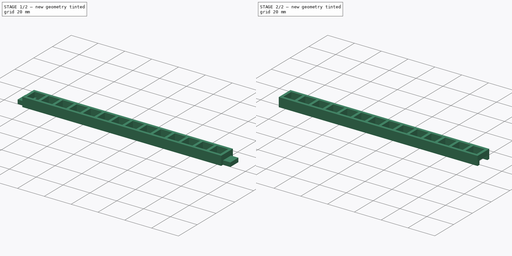
[diagram: build sequence overview — one tinted view per stage of 2, left to right]
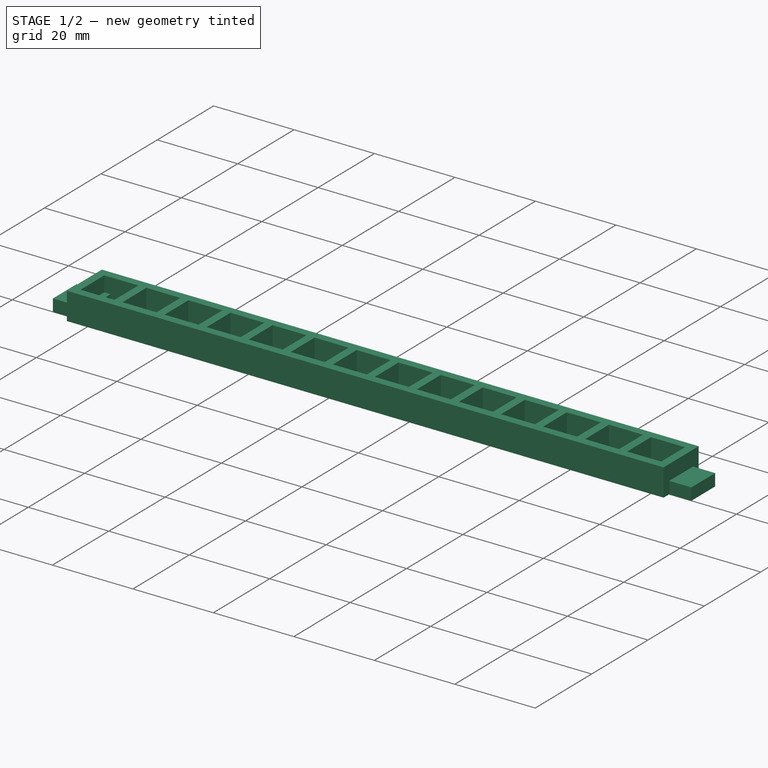
[diagram: stage 1 of 2 — iso view after this stage's code; geometry added in this stage tinted green]
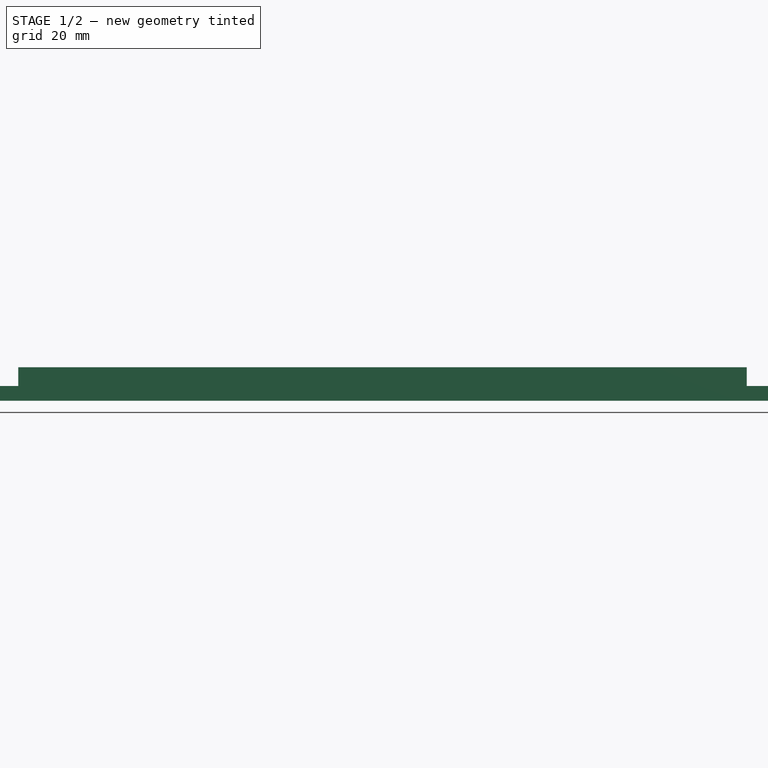
[diagram: stage 1 of 2 — front view after this stage's code; geometry added in this stage tinted green]
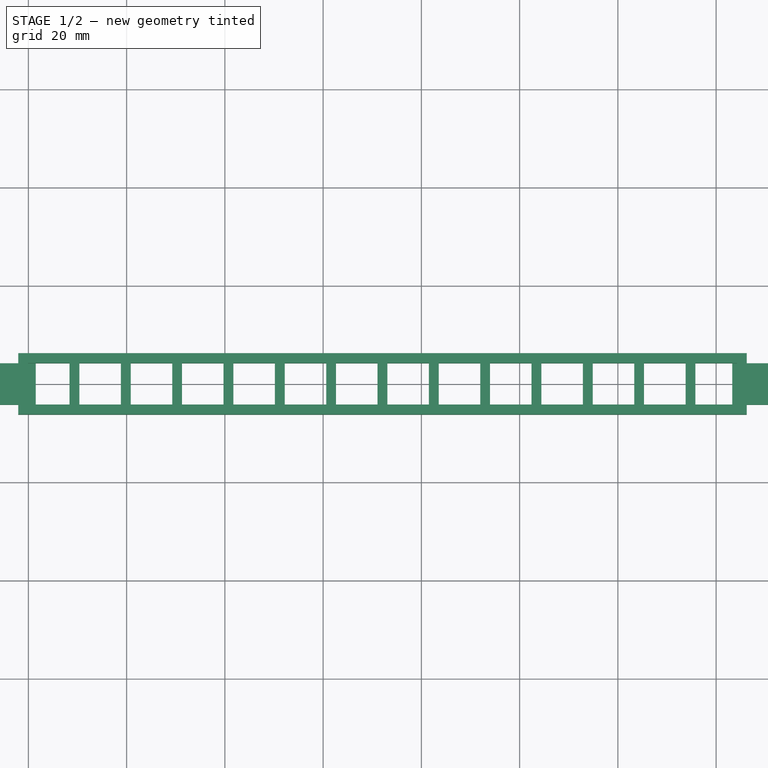
[diagram: stage 1 of 2 — top view after this stage's code; geometry added in this stage tinted green]
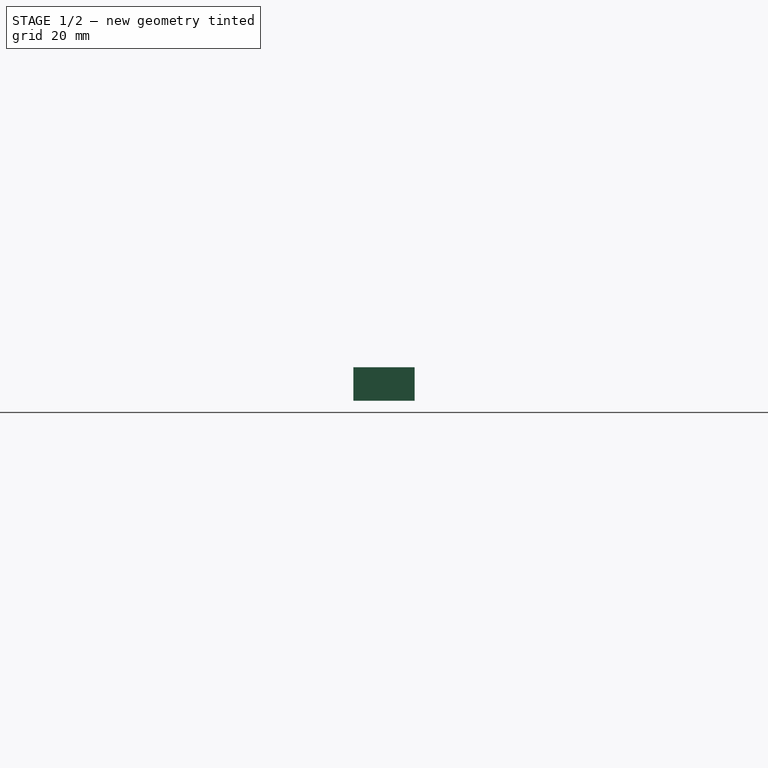
[diagram: stage 1 of 2 — right view after this stage's code; geometry added in this stage tinted green]
FCSTD DOCUMENT  (FreeCAD 0.21R33771 (Git))
Label: 6IN8SHELL-LEDFORT14
License: All rights reserved
LicenseURL: http://en.wikipedia.org/wiki/All_rights_reserved
objects: Sketcher::SketchObject×2, PartDesign::Body×2, Part::Extrusion×2, Part::Cut×1
note: 7 computed .brp shape members not serialized (recipe doc carries the construction recipe); baked Part::Feature solids carry a one-line shape summary decoded from their .brp

FEATURE [Sketcher::SketchObject] Sketch
  FullyConstrained = true
  MapMode = 5
  Support = -> [XY_Plane]
  sketch-geometry (101):
    g0: LineSegment StartX=-4.225 StartY=-4.225 StartZ=0 EndX=-4.225 EndY=4.225 EndZ=0
    g1: LineSegment StartX=-4.225 StartY=4.225 StartZ=0 EndX=4.225 EndY=4.225 EndZ=0
    g2: LineSegment StartX=4.225 StartY=4.225 StartZ=0 EndX=4.225 EndY=-4.225 EndZ=0
    g3: LineSegment StartX=4.225 StartY=-4.225 StartZ=0 EndX=-4.225 EndY=-4.225 EndZ=0
    g4: GeomPoint X=0 Y=0 Z=0
    g5: GeomPoint X=0 Y=0 Z=0
    g6: LineSegment StartX=6.225 StartY=6.225 StartZ=0 EndX=6.225 EndY=-6.225 EndZ=0
    g7: LineSegment StartX=-14.675 StartY=-4.225 StartZ=0 EndX=-14.675 EndY=4.225 EndZ=0
    g8: LineSegment StartX=-14.675 StartY=4.225 StartZ=0 EndX=-6.225 EndY=4.225 EndZ=0
    g9: LineSegment StartX=-6.225 StartY=4.225 StartZ=0 EndX=-6.225 EndY=-4.225 EndZ=0
    g10: LineSegment StartX=-6.225 StartY=-4.225 StartZ=0 EndX=-14.675 EndY=-4.225 EndZ=0
    g11: GeomPoint X=-10.45 Y=3.78e-14 Z=0
    g12: GeomPoint X=-10.45 Y=3.78e-14 Z=0
    g13: LineSegment StartX=-4.225 StartY=-4.225 StartZ=0 EndX=-14.675 EndY=-4.225 EndZ=0
    g14: LineSegment StartX=-25.125 StartY=-4.225 StartZ=0 EndX=-25.125 EndY=4.225 EndZ=0
    g15: LineSegment StartX=-25.125 StartY=4.225 StartZ=0 EndX=-16.675 EndY=4.225 EndZ=0
    g16: LineSegment StartX=-16.675 StartY=4.225 StartZ=0 EndX=-16.675 EndY=-4.225 EndZ=0
    g17: LineSegment StartX=-16.675 StartY=-4.225 StartZ=0 EndX=-25.125 EndY=-4.225 EndZ=0
    g18: GeomPoint X=-20.9 Y=6.74e-14 Z=0
    g19: GeomPoint X=-20.9 Y=6.74e-14 Z=0
    g20: LineSegment StartX=-14.675 StartY=-4.225 StartZ=0 EndX=-25.125 EndY=-4.225 EndZ=0
    g21: LineSegment StartX=-35.575 StartY=-4.225 StartZ=0 EndX=-35.575 EndY=4.225 EndZ=0
    g22: LineSegment StartX=-35.575 StartY=4.225 StartZ=0 EndX=-27.125 EndY=4.225 EndZ=0
    g23: LineSegment StartX=-27.125 StartY=4.225 StartZ=0 EndX=-27.125 EndY=-4.225 EndZ=0
    g24: LineSegment StartX=-27.125 StartY=-4.225 StartZ=0 EndX=-35.575 EndY=-4.225 EndZ=0
    g25: GeomPoint X=-31.35 Y=8.21e-14 Z=0
    g26: GeomPoint X=-31.35 Y=8.21e-14 Z=0
    g27: LineSegment StartX=-25.125 StartY=-4.225 StartZ=0 EndX=-35.575 EndY=-4.225 EndZ=0
    g28: LineSegment StartX=-46.025 StartY=-4.225 StartZ=0 EndX=-46.025 EndY=4.225 EndZ=0
    g29: LineSegment StartX=-46.025 StartY=4.225 StartZ=0 EndX=-37.575 EndY=4.225 EndZ=0
    g30: LineSegment StartX=-37.575 StartY=4.225 StartZ=0 EndX=-37.575 EndY=-4.225 EndZ=0
    g31: LineSegment StartX=-37.575 StartY=-4.225 StartZ=0 EndX=-46.025 EndY=-4.225 EndZ=0
    g32: GeomPoint X=-41.8 Y=7.8e-14 Z=0
    g33: GeomPoint X=-41.8 Y=7.8e-14 Z=0
    g34: LineSegment StartX=-35.575 StartY=-4.225 StartZ=0 EndX=-46.025 EndY=-4.225 EndZ=0
    g35: LineSegment StartX=-56.475 StartY=-4.225 StartZ=0 EndX=-56.475 EndY=4.225 EndZ=0
    g36: LineSegment StartX=-56.475 StartY=4.225 StartZ=0 EndX=-48.025 EndY=4.225 EndZ=0
    g37: LineSegment StartX=-48.025 StartY=4.225 StartZ=0 EndX=-48.025 EndY=-4.225 EndZ=0
    g38: LineSegment StartX=-48.025 StartY=-4.225 StartZ=0 EndX=-56.475 EndY=-4.225 EndZ=0
    g39: GeomPoint X=-52.25 Y=8.29e-14 Z=0
    g40: GeomPoint X=-52.25 Y=8.29e-14 Z=0
    g41: LineSegment StartX=-46.025 StartY=-4.225 StartZ=0 EndX=-56.475 EndY=-4.225 EndZ=0
    g42: LineSegment StartX=-66.925 StartY=-4.225 StartZ=0 EndX=-66.925 EndY=4.225 EndZ=0
    g43: LineSegment StartX=-66.925 StartY=4.225 StartZ=0 EndX=-58.475 EndY=4.225 EndZ=0
    g44: LineSegment StartX=-58.475 StartY=4.225 StartZ=0 EndX=-58.475 EndY=-4.225 EndZ=0
    g45: LineSegment StartX=-58.475 StartY=-4.225 StartZ=0 EndX=-66.925 EndY=-4.225 EndZ=0
    g46: GeomPoint X=-62.7 Y=8.61e-14 Z=0
    g47: GeomPoint X=-62.7 Y=8.61e-14 Z=0
    g48: LineSegment StartX=-56.475 StartY=-4.225 StartZ=0 EndX=-66.925 EndY=-4.225 EndZ=0
    g49: LineSegment StartX=-77.375 StartY=-4.225 StartZ=0 EndX=-77.375 EndY=4.225 EndZ=0
    g50: LineSegment StartX=-77.375 StartY=4.225 StartZ=0 EndX=-68.925 EndY=4.225 EndZ=0
    g51: LineSegment StartX=-68.925 StartY=4.225 StartZ=0 EndX=-68.925 EndY=-4.225 EndZ=0
    g52: LineSegment StartX=-68.925 StartY=-4.225 StartZ=0 EndX=-77.375 EndY=-4.225 EndZ=0
    g53: GeomPoint X=-73.15 Y=8.1e-14 Z=0
    g54: GeomPoint X=-73.15 Y=8.1e-14 Z=0
    g55: LineSegment StartX=-66.925 StartY=-4.225 StartZ=0 EndX=-77.375 EndY=-4.225 EndZ=0
    g56: LineSegment StartX=-87.825 StartY=-4.225 StartZ=0 EndX=-87.825 EndY=4.225 EndZ=0
    g57: LineSegment StartX=-87.825 StartY=4.225 StartZ=0 EndX=-79.375 EndY=4.225 EndZ=0
    g58: LineSegment StartX=-79.375 StartY=4.225 StartZ=0 EndX=-79.375 EndY=-4.225 EndZ=0
    g59: LineSegment StartX=-79.375 StartY=-4.225 StartZ=0 EndX=-87.825 EndY=-4.225 EndZ=0
    g60: GeomPoint X=-83.6 Y=9e-14 Z=0
    g61: GeomPoint X=-83.6 Y=9e-14 Z=0
    g62: LineSegment StartX=-77.375 StartY=-4.225 StartZ=0 EndX=-87.825 EndY=-4.225 EndZ=0
    g63: LineSegment StartX=-98.275 StartY=-4.225 StartZ=0 EndX=-98.275 EndY=4.225 EndZ=0
    g64: LineSegment StartX=-98.275 StartY=4.225 StartZ=0 EndX=-89.825 EndY=4.225 EndZ=0
    g65: LineSegment StartX=-89.825 StartY=4.225 StartZ=0 EndX=-89.825 EndY=-4.225 EndZ=0
    g66: LineSegment StartX=-89.825 StartY=-4.225 StartZ=0 EndX=-98.275 EndY=-4.225 EndZ=0
    g67: GeomPoint X=-94.05 Y=8.85e-14 Z=0
    g68: GeomPoint X=-94.05 Y=8.85e-14 Z=0
    g69: LineSegment StartX=-87.825 StartY=-4.225 StartZ=0 EndX=-98.275 EndY=-4.225 EndZ=0
    g70: LineSegment StartX=-108.725 StartY=-4.225 StartZ=0 EndX=-108.725 EndY=4.225 EndZ=0
    g71: LineSegment StartX=-108.725 StartY=4.225 StartZ=0 EndX=-100.275 EndY=4.225 EndZ=0
    g72: LineSegment StartX=-100.275 StartY=4.225 StartZ=0 EndX=-100.275 EndY=-4.225 EndZ=0
    g73: LineSegment StartX=-100.275 StartY=-4.225 StartZ=0 EndX=-108.725 EndY=-4.225 EndZ=0
    g74: GeomPoint X=-104.5 Y=9.71e-14 Z=0
    g75: GeomPoint X=-104.5 Y=9.71e-14 Z=0
    g76: LineSegment StartX=-98.275 StartY=-4.225 StartZ=0 EndX=-108.725 EndY=-4.225 EndZ=0
    g77: LineSegment StartX=-119.175 StartY=-4.225 StartZ=0 EndX=-119.175 EndY=4.225 EndZ=0
    g78: LineSegment StartX=-119.175 StartY=4.225 StartZ=0 EndX=-110.725 EndY=4.225 EndZ=0
    g79: LineSegment StartX=-110.725 StartY=4.225 StartZ=0 EndX=-110.725 EndY=-4.225 EndZ=0
    g80: LineSegment StartX=-110.725 StartY=-4.225 StartZ=0 EndX=-119.175 EndY=-4.225 EndZ=0
    g81: GeomPoint X=-114.95 Y=7.84e-14 Z=0
    g82: GeomPoint X=-114.95 Y=7.84e-14 Z=0
    g83: LineSegment StartX=-108.725 StartY=-4.225 StartZ=0 EndX=-119.175 EndY=-4.225 EndZ=0
    g84: LineSegment StartX=-129.625 StartY=-4.225 StartZ=0 EndX=-129.625 EndY=4.225 EndZ=0
    g85: LineSegment StartX=-129.625 StartY=4.225 StartZ=0 EndX=-121.175 EndY=4.225 EndZ=0
    g86: LineSegment StartX=-121.175 StartY=4.225 StartZ=0 EndX=-121.175 EndY=-4.225 EndZ=0
    g87: LineSegment StartX=-121.175 StartY=-4.225 StartZ=0 EndX=-129.625 EndY=-4.225 EndZ=0
    g88: GeomPoint X=-125.4 Y=-9.38e-14 Z=0
    g89: GeomPoint X=-125.4 Y=-9.38e-14 Z=0
    g90: LineSegment StartX=-119.175 StartY=-4.225 StartZ=0 EndX=-129.625 EndY=-4.225 EndZ=0
    g91: LineSegment StartX=-140.075 StartY=-4.225 StartZ=0 EndX=-140.075 EndY=4.225 EndZ=0
    g92: LineSegment StartX=-140.075 StartY=4.225 StartZ=0 EndX=-131.625 EndY=4.225 EndZ=0
    g93: LineSegment StartX=-131.625 StartY=4.225 StartZ=0 EndX=-131.625 EndY=-4.225 EndZ=0
    g94: LineSegment StartX=-131.625 StartY=-4.225 StartZ=0 EndX=-140.075 EndY=-4.225 EndZ=0
    g95: GeomPoint X=-135.85 Y=1.6745e-12 Z=0
    g96: GeomPoint X=-135.85 Y=1.6745e-12 Z=0
    g97: LineSegment StartX=-129.625 StartY=-4.225 StartZ=0 EndX=-140.075 EndY=-4.225 EndZ=0
    g98: LineSegment StartX=6.225 StartY=-6.225 StartZ=0 EndX=-142.075 EndY=-6.225 EndZ=0
    g99: LineSegment StartX=-142.075 StartY=-6.225 StartZ=0 EndX=-142.075 EndY=6.225 EndZ=0
    g100: LineSegment StartX=-142.075 StartY=6.225 StartZ=0 EndX=6.225 EndY=6.225 EndZ=0
  constraints (233):
    c: Coincident(g0,g1)
    c: Coincident(g1,g2)
    c: Coincident(g2,g3)
    c: Horizontal(g1)
    c: Horizontal(g3)
    c: Vertical(g0)
    c: Vertical(g2)
    c: Symmetric(g1,g0,g4)
    c: Coincident(g4,g-1)
    c: DistanceX(g1,g1) = 8.45
    c: DistanceY(g0,g0) = 8.45
    c: Coincident(g5,g4)
    c: DistanceY(g1,g6) = 2
    c: DistanceX(g1,g6) = 2
    c: Vertical(g6)
    c: Coincident(g0,g3)
    c: Coincident(g7,g8)
    c: Coincident(g8,g9)
    c: Coincident(g9,g10)
    c: Horizontal(g8)
    c: Horizontal(g10)
    c: Vertical(g7)
    c: Vertical(g9)
    c: Symmetric(g8,g7,g11)
    c: Equal(g1,g8) = 8.45
    c: Equal(g0,g7) = 8.45
    c: Coincident(g12,g11)
    c: Coincident(g7,g10)
    c: Coincident(g0,g13)
    c: Coincident(g7,g13)
    c: Distance(g13) = 10.45
    c: Angle(g13) = 3.14159
    c: Coincident(g14,g15)
    c: Coincident(g15,g16)
    c: Coincident(g16,g17)
    c: Horizontal(g15)
    c: Horizontal(g17)
    c: Vertical(g14)
    c: Vertical(g16)
    c: Symmetric(g15,g14,g18)
    c: Equal(g1,g15) = 8.45
    c: Equal(g0,g14) = 8.45
    c: Coincident(g19,g18)
    c: Coincident(g14,g17)
    c: Coincident(g7,g20)
    c: Coincident(g14,g20)
    c: Equal(g13,g20)
    c: Parallel(g20,g13)
    c: Coincident(g21,g22)
    c: Coincident(g22,g23)
    c: Coincident(g23,g24)
    c: Horizontal(g22)
    c: Horizontal(g24)
    c: Vertical(g21)
    c: Vertical(g23)
    c: Symmetric(g22,g21,g25)
    c: Equal(g1,g22) = 8.45
    c: Equal(g0,g21) = 8.45
    c: Coincident(g26,g25)
    c: Coincident(g21,g24)
    c: Coincident(g14,g27)
    c: Coincident(g21,g27)
    c: Equal(g13,g27)
    c: Parallel(g27,g13)
    c: Coincident(g28,g29)
    c: Coincident(g29,g30)
    c: Coincident(g30,g31)
    c: Horizontal(g29)
    c: Horizontal(g31)
    c: Vertical(g28)
    c: Vertical(g30)
    c: Symmetric(g29,g28,g32)
    c: Equal(g1,g29) = 8.45
    c: Equal(g0,g28) = 8.45
    c: Coincident(g33,g32)
    c: Coincident(g28,g31)
    c: Coincident(g21,g34)
    c: Coincident(g28,g34)
    c: Equal(g13,g34)
    c: Parallel(g34,g13)
    c: Coincident(g35,g36)
    c: Coincident(g36,g37)
    c: Coincident(g37,g38)
    c: Horizontal(g36)
    c: Horizontal(g38)
    c: Vertical(g35)
    c: Vertical(g37)
    c: Symmetric(g36,g35,g39)
    c: Equal(g1,g36) = 8.45
    c: Equal(g0,g35) = 8.45
    c: Coincident(g40,g39)
    c: Coincident(g35,g38)
    c: Coincident(g28,g41)
    c: Coincident(g35,g41)
    c: Equal(g13,g41)
    c: Parallel(g41,g13)
    c: Coincident(g42,g43)
    c: Coincident(g43,g44)
    c: Coincident(g44,g45)
    c: Horizontal(g43)
    c: Horizontal(g45)
    c: Vertical(g42)
    c: Vertical(g44)
    c: Symmetric(g43,g42,g46)
    c: Equal(g1,g43) = 8.45
    c: Equal(g0,g42) = 8.45
    c: Coincident(g47,g46)
    c: Coincident(g42,g45)
    c: Coincident(g35,g48)
    c: Coincident(g42,g48)
    c: Equal(g13,g48)
    c: Parallel(g48,g13)
    c: Coincident(g49,g50)
    c: Coincident(g50,g51)
    c: Coincident(g51,g52)
    c: Horizontal(g50)
    c: Horizontal(g52)
    c: Vertical(g49)
    c: Vertical(g51)
    c: Symmetric(g50,g49,g53)
    c: Equal(g1,g50) = 8.45
    c: Equal(g0,g49) = 8.45
    c: Coincident(g54,g53)
    c: Coincident(g49,g52)
    c: Coincident(g42,g55)
    c: Coincident(g49,g55)
    c: Equal(g13,g55)
    c: Parallel(g55,g13)
    c: Coincident(g56,g57)
    c: Coincident(g57,g58)
    c: Coincident(g58,g59)
    c: Horizontal(g57)
    c: Horizontal(g59)
    c: Vertical(g56)
    c: Vertical(g58)
    c: Symmetric(g57,g56,g60)
    c: Equal(g1,g57) = 8.45
    c: Equal(g0,g56) = 8.45
    c: Coincident(g61,g60)
    c: Coincident(g56,g59)
    c: Coincident(g49,g62)
    c: Coincident(g56,g62)
    c: Equal(g13,g62)
    c: Parallel(g62,g13)
    c: Coincident(g63,g64)
    c: Coincident(g64,g65)
    c: Coincident(g65,g66)
    c: Horizontal(g64)
    c: Horizontal(g66)
    c: Vertical(g63)
    c: Vertical(g65)
    c: Symmetric(g64,g63,g67)
    c: Equal(g1,g64) = 8.45
    c: Equal(g0,g63) = 8.45
    c: Coincident(g68,g67)
    c: Coincident(g63,g66)
    c: Coincident(g56,g69)
    c: Coincident(g63,g69)
    c: Equal(g13,g69)
    c: Parallel(g69,g13)
    c: Coincident(g70,g71)
    c: Coincident(g71,g72)
    c: Coincident(g72,g73)
    c: Horizontal(g71)
    c: Horizontal(g73)
    c: Vertical(g70)
    c: Vertical(g72)
    c: Symmetric(g71,g70,g74)
    c: Equal(g1,g71) = 8.45
    c: Equal(g0,g70) = 8.45
    c: Coincident(g75,g74)
    c: Coincident(g70,g73)
    c: Coincident(g63,g76)
    c: Coincident(g70,g76)
    c: Equal(g13,g76)
    c: Parallel(g76,g13)
    c: Coincident(g77,g78)
    c: Coincident(g78,g79)
    c: Coincident(g79,g80)
    c: Horizontal(g78)
    c: Horizontal(g80)
    c: Vertical(g77)
    c: Vertical(g79)
    c: Symmetric(g78,g77,g81)
    c: Equal(g1,g78) = 8.45
    c: Equal(g0,g77) = 8.45
    c: Coincident(g82,g81)
    c: Coincident(g77,g80)
    c: Coincident(g70,g83)
    c: Coincident(g77,g83)
    c: Equal(g13,g83)
    c: Parallel(g83,g13)
    c: Coincident(g84,g85)
    c: Coincident(g85,g86)
    c: Coincident(g86,g87)
    c: Horizontal(g85)
    c: Horizontal(g87)
    c: Vertical(g84)
    c: Vertical(g86)
    c: Symmetric(g85,g84,g88)
    c: Equal(g1,g85) = 8.45
    c: Equal(g0,g84) = 8.45
    c: Coincident(g89,g88)
    c: Coincident(g84,g87)
    c: Coincident(g77,g90)
    c: Coincident(g84,g90)
    c: Equal(g13,g90)
    c: Parallel(g90,g13)
    c: Coincident(g91,g92)
    c: Coincident(g92,g93)
    c: Coincident(g93,g94)
    c: Horizontal(g92)
    c: Horizontal(g94)
    c: Vertical(g91)
    c: Vertical(g93)
    c: Symmetric(g92,g91,g95)
    c: Equal(g1,g92) = 8.45
    c: Equal(g0,g91) = 8.45
    c: Coincident(g96,g95)
    c: Coincident(g91,g94)
    c: Coincident(g84,g97)
    c: Coincident(g91,g97)
    c: Equal(g13,g97)
    c: Parallel(g97,g13)
    c: Coincident(g98,g6)
    c: Horizontal(g98)
    c: Coincident(g99,g98)
    c: Vertical(g99)
    c: Coincident(g100,g6)
    c: Horizontal(g100)
    c: Coincident(g99,g100)
    c: DistanceY(g6,g6) = 12.45
    c: DistanceX(g99,g91) = 2
FEATURE [PartDesign::Body] Body
  Group = -> [Sketch]
  Origin = -> Origin
FEATURE [Part::Extrusion] Extrude
  Base = -> Sketch
  Dir = (0,0,1)
  DirMode = 2
  FaceMakerClass = Part::FaceMakerBullseye
  LengthFwd = 6.8
  LengthRev = 0
  Solid = true
  Symmetric = false
FEATURE [Sketcher::SketchObject] Sketch001
  FullyConstrained = true
  MapMode = 5
  Support = -> [XY_Plane001]
  sketch-geometry (10):
    g0: LineSegment StartX=-146.95 StartY=-4.225 StartZ=0 EndX=-146.95 EndY=4.225 EndZ=0
    g1: LineSegment StartX=-146.95 StartY=4.225 StartZ=0 EndX=-138.5 EndY=4.225 EndZ=0
    g2: LineSegment StartX=-138.5 StartY=4.225 StartZ=0 EndX=-138.5 EndY=-4.225 EndZ=0
    g3: LineSegment StartX=-138.5 StartY=-4.225 StartZ=0 EndX=-146.95 EndY=-4.225 EndZ=0
    g4: GeomPoint X=-142.725 Y=0 Z=0
    g5: LineSegment StartX=11.725 StartY=-4.225 StartZ=0 EndX=11.725 EndY=4.225 EndZ=0
    g6: LineSegment StartX=11.725 StartY=4.225 StartZ=0 EndX=3.275 EndY=4.225 EndZ=0
    g7: LineSegment StartX=3.275 StartY=4.225 StartZ=0 EndX=3.275 EndY=-4.225 EndZ=0
    g8: LineSegment StartX=3.275 StartY=-4.225 StartZ=0 EndX=11.725 EndY=-4.225 EndZ=0
    g9: GeomPoint X=7.5 Y=0 Z=0
  constraints (26):
    c: Coincident(g0,g1)
    c: Coincident(g1,g2)
    c: Coincident(g2,g3)
    c: Coincident(g3,g0)
    c: Horizontal(g1)
    c: Horizontal(g3)
    c: Vertical(g0)
    c: Vertical(g2)
    c: Symmetric(g1,g0,g4)
    c: PointOnObject(g4,g-1)
    c: DistanceY(g0,g0) = 8.45
    c: DistanceX(g1,g1) = 8.45
    c: DistanceX(g1,g-1) = 138.5
    c: Coincident(g5,g6)
    c: Coincident(g6,g7)
    c: Coincident(g7,g8)
    c: Coincident(g8,g5)
    c: Horizontal(g6)
    c: Horizontal(g8)
    c: Vertical(g5)
    c: Vertical(g7)
    c: Symmetric(g6,g5,g9)
    c: PointOnObject(g9,g-1)
    c: DistanceY(g5,g5) = 8.45
    c: DistanceX(g6,g6) = 8.45
    c: DistanceX(g-1,g9) = 7.5
FEATURE [PartDesign::Body] Body001
  Group = -> [Sketch001]
  Origin = -> Origin001
FEATURE [Part::Extrusion] Extrude001
  Base = -> Sketch001
  Dir = (0,0,1)
  DirMode = 2
  FaceMakerClass = Part::FaceMakerBullseye
  LengthFwd = 3
  LengthRev = 0
  Solid = true
  Symmetric = false
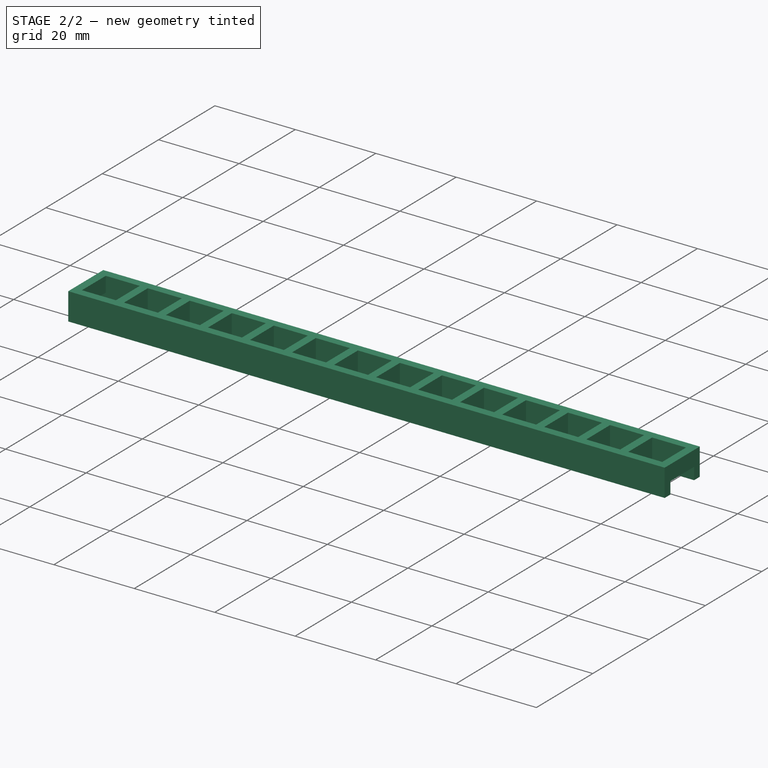
[diagram: stage 2 of 2 — iso view after this stage's code; geometry added in this stage tinted green]
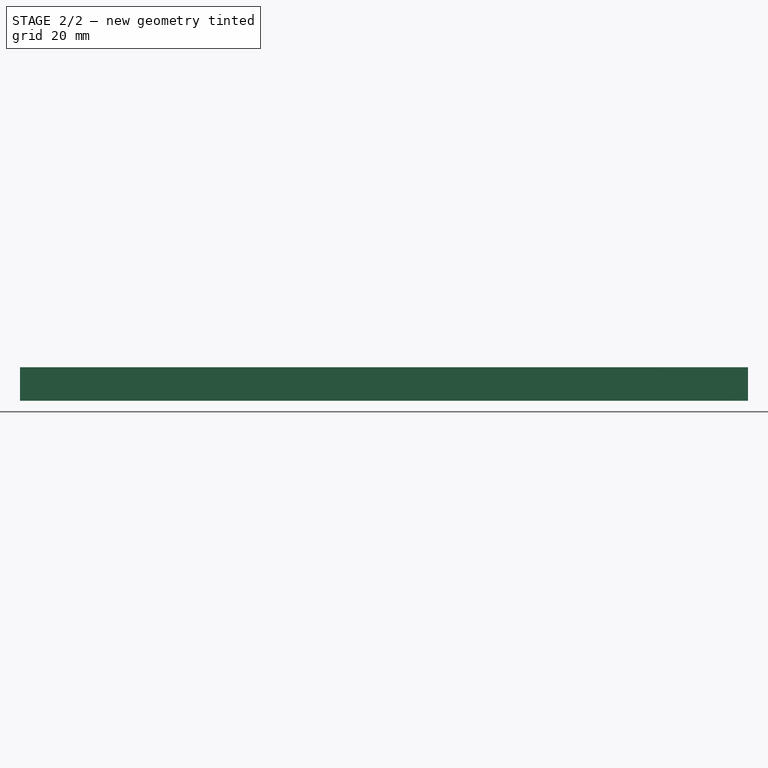
[diagram: stage 2 of 2 — front view after this stage's code; geometry added in this stage tinted green]
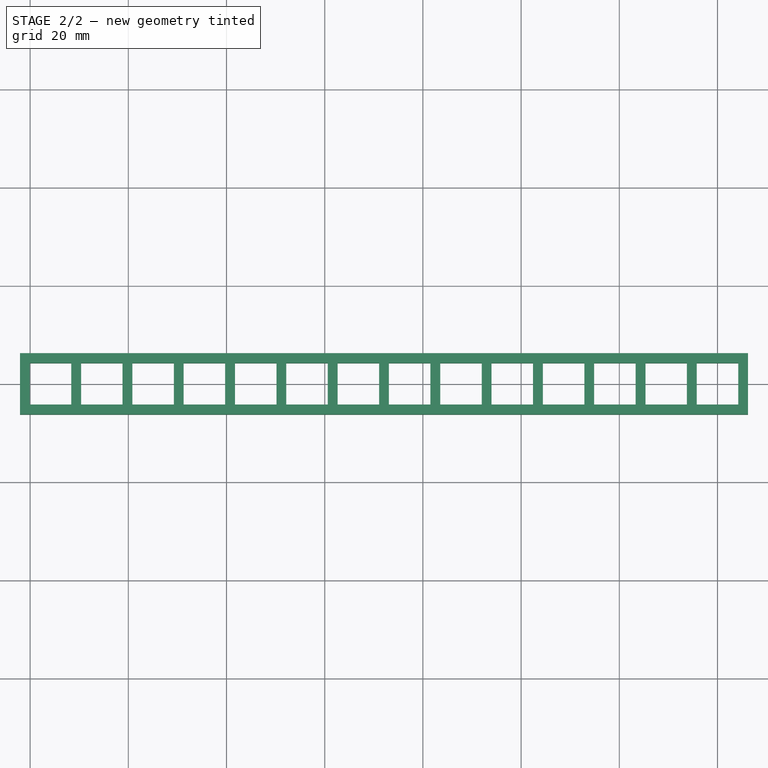
[diagram: stage 2 of 2 — top view after this stage's code; geometry added in this stage tinted green]
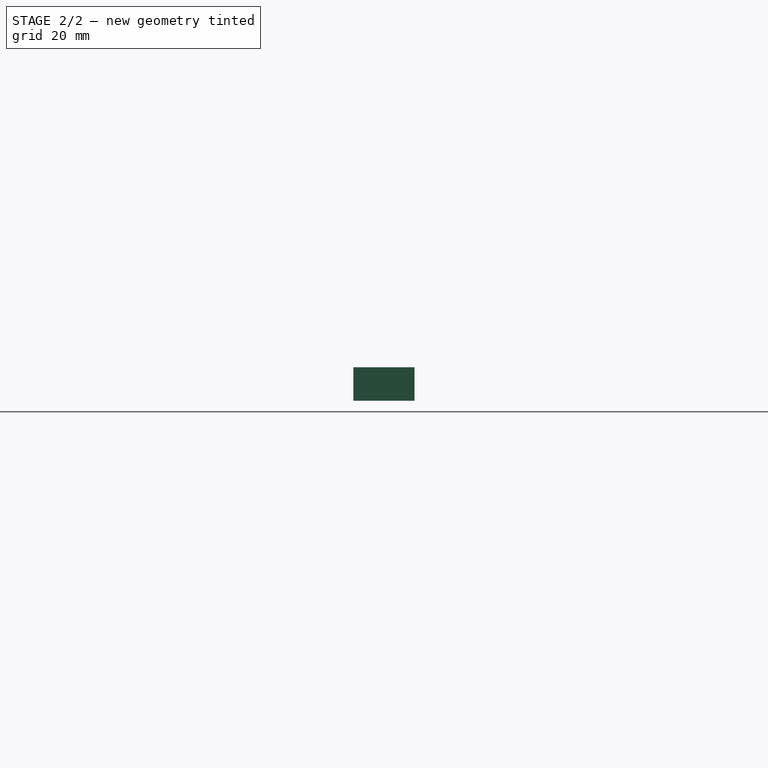
[diagram: stage 2 of 2 — right view after this stage's code; geometry added in this stage tinted green]
FEATURE [Part::Cut] Cut
  Base = -> Extrude
  Tool = -> Extrude001
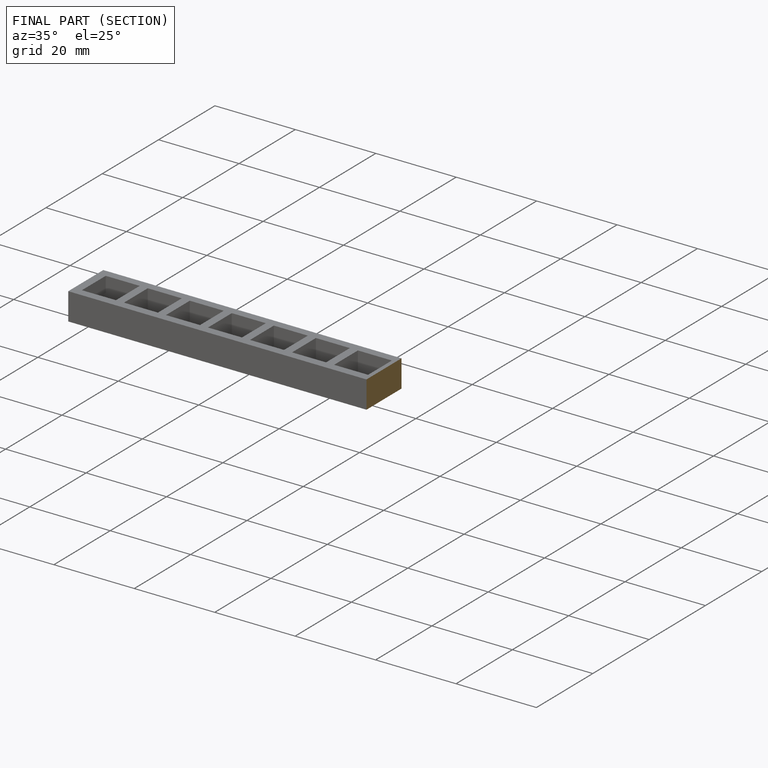
[diagram: finished part — half-section view (interior)]
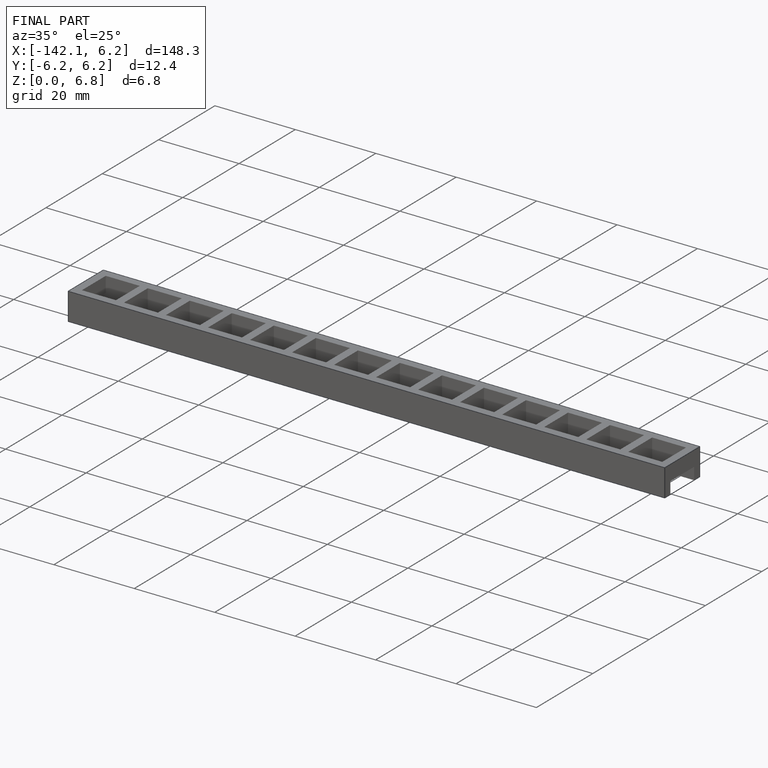
[diagram: finished part — iso view with bounding-box wireframe]
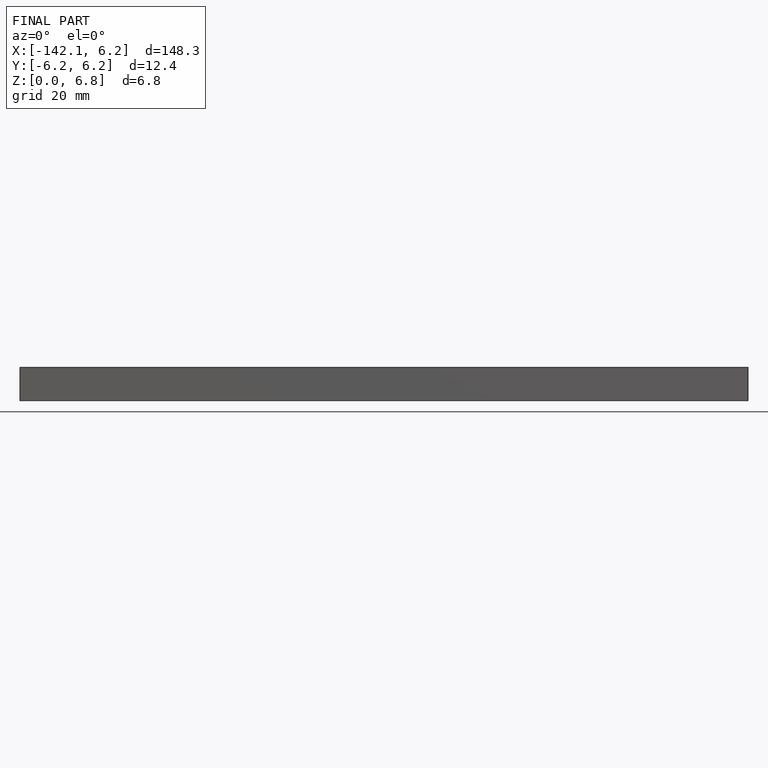
[diagram: finished part — front view with bounding-box wireframe]
